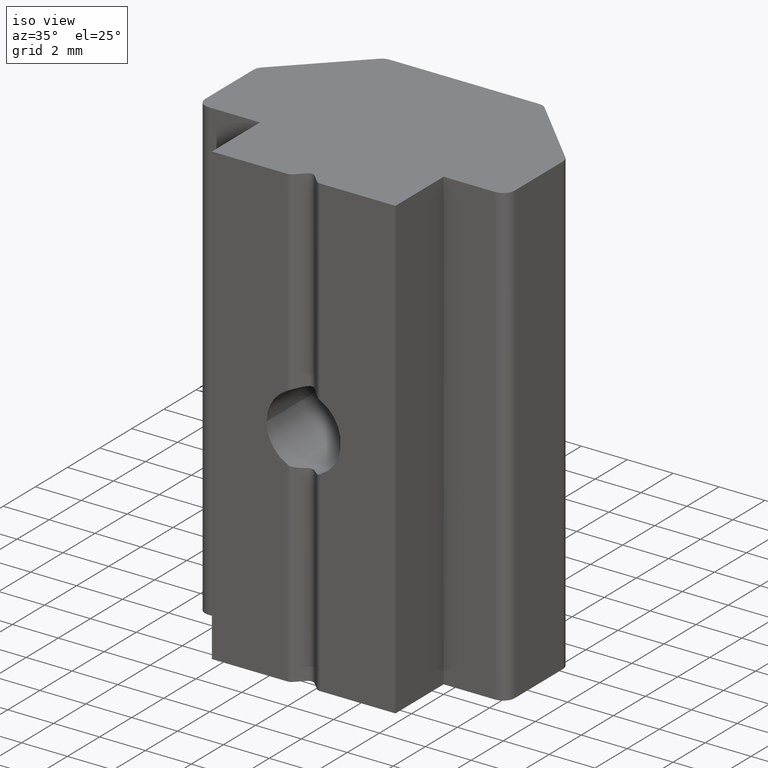
[diagram: clean part render]
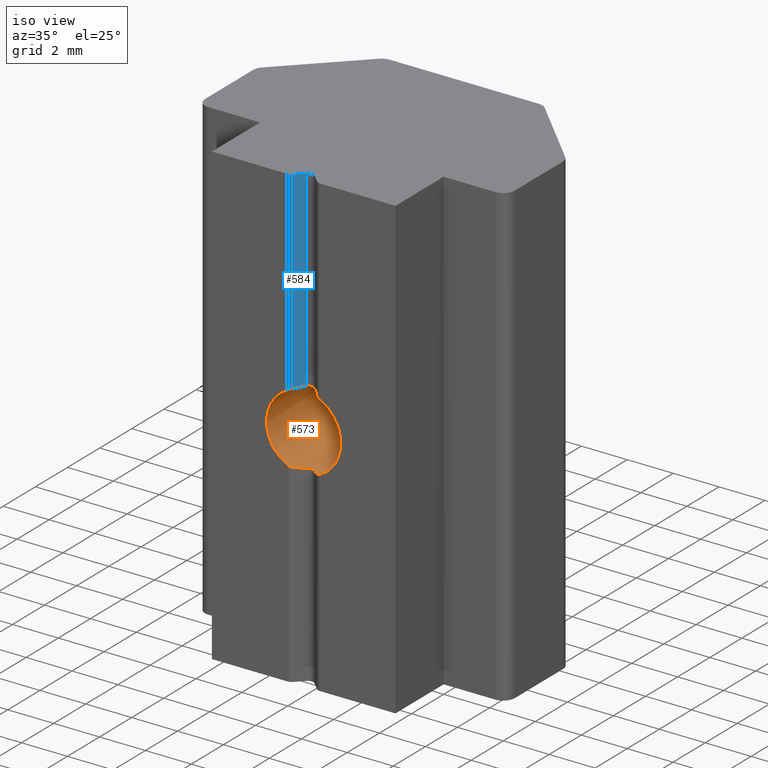
[diagram: same view with the hole feature highlighted: cylindrical wall and planar end face, labeled with their STEP entity ids]
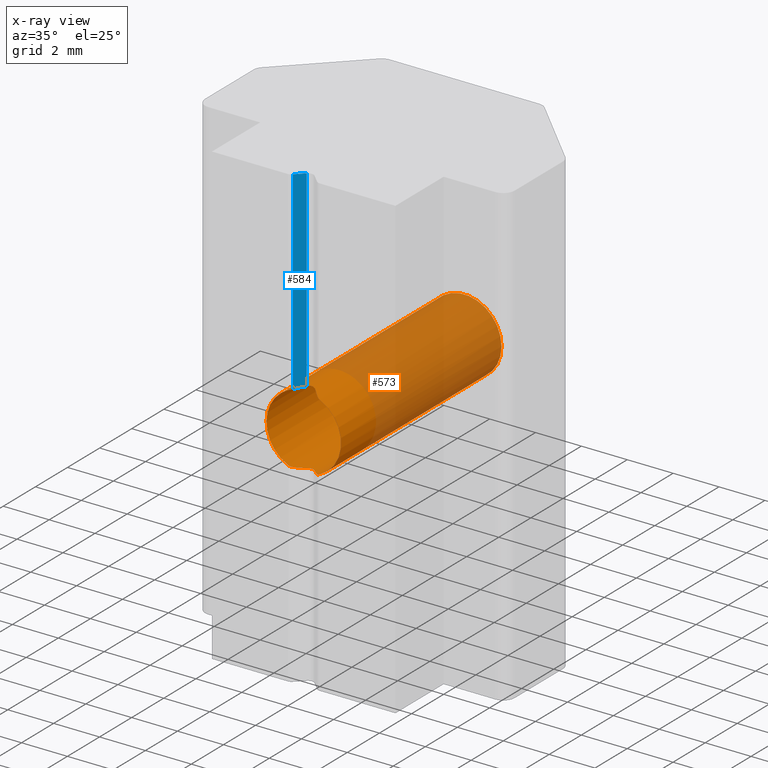
[diagram: x-ray of the same camera — body ghosted, the hole faces saturated]
A machine part, iso view. The highlighted faces form one hole feature of diameter 3.242 mm: the cylindrical wall (entity #573, orange) and its adjacent planar end face (entity #584, blue) — they share a circular edge in the B-rep.
The next image is the same camera in x-ray (body ghosted, the hole faces saturated) — the bore reads through the body.
Wall:
#33=FACE_OUTER_BOUND('',#63,.T.);
#63=EDGE_LOOP('',(#384,#385,#386,#387,#388,#389,#390,#391,#392,#393,#394,
#395,#396,#397,#398,#399,#400));
#94=ELLIPSE('',#627,2.29244018460679,1.621);
#95=ELLIPSE('',#628,2.29244018460679,1.621);
#96=ELLIPSE('',#630,2.29244018460679,1.621);
#97=ELLIPSE('',#631,2.29244018460679,1.621);
#98=B_SPLINE_CURVE_WITH_KNOTS('',3,(#862,#863,#864,#865,#866,#867),
 .UNSPECIFIED.,.F.,.F.,(4,2,4),(0.0190425131023495,0.0289352935333487,0.039160634581061),
 .UNSPECIFIED.);
#99=B_SPLINE_CURVE_WITH_KNOTS('',3,(#871,#872,#873,#874,#875,#876,#877,
#878,#879,#880),.UNSPECIFIED.,.F.,.F.,(4,2,2,2,4),(0.0188669036453617,0.02830017142838,
0.0377334392113984,0.0471667069944167,0.0565999747774351),.UNSPECIFIED.);
#100=B_SPLINE_CURVE_WITH_KNOTS('',3,(#884,#885,#886,#887,#888,#889),
 .UNSPECIFIED.,.F.,.F.,(4,2,4),(0.0407619459190261,0.0509872869667384,0.0608800673977376),
 .UNSPECIFIED.);
#101=B_SPLINE_CURVE_WITH_KNOTS('',3,(#893,#894,#895,#896,#897,#898),
 .UNSPECIFIED.,.F.,.F.,(4,2,4),(0.0989652227320076,0.108858003163007,0.119083344210719),
 .UNSPECIFIED.);
#102=B_SPLINE_CURVE_WITH_KNOTS('',3,(#902,#903,#904,#905,#906,#907,#908,
#909,#910,#911),.UNSPECIFIED.,.F.,.F.,(4,2,2,2,4),(0.0943337820681582,0.103767049851177,
0.113200317634195,0.122633585417213,0.132066853200232),.UNSPECIFIED.);
#103=B_SPLINE_CURVE_WITH_KNOTS('',3,(#915,#916,#917,#918,#919,#920),
 .UNSPECIFIED.,.F.,.F.,(4,2,4),(0.120693936617104,0.130919277664816,0.140812058095815),
 .UNSPECIFIED.);
#104=LINE('',#858,#159);
#159=VECTOR('',#688,1.621);
#214=CIRCLE('',#624,1.621);
#215=CIRCLE('',#625,1.621);
#216=CIRCLE('',#626,1.621);
#217=CIRCLE('',#629,1.621);
#218=CIRCLE('',#632,1.621);
#237=VERTEX_POINT('',#853);
#238=VERTEX_POINT('',#854);
#239=VERTEX_POINT('',#857);
#240=VERTEX_POINT('',#859);
#241=VERTEX_POINT('',#861);
#242=VERTEX_POINT('',#868);
#243=VERTEX_POINT('',#870);
#244=VERTEX_POINT('',#881);
#245=VERTEX_POINT('',#883);
#246=VERTEX_POINT('',#890);
#247=VERTEX_POINT('',#892);
#248=VERTEX_POINT('',#899);
#249=VERTEX_POINT('',#901);
#250=VERTEX_POINT('',#912);
#251=VERTEX_POINT('',#914);
#296=EDGE_CURVE('',#237,#238,#214,.T.);
#297=EDGE_CURVE('',#238,#237,#215,.T.);
#298=EDGE_CURVE('',#238,#239,#104,.T.);
#299=EDGE_CURVE('',#240,#239,#216,.T.);
#300=EDGE_CURVE('',#241,#240,#98,.T.);
#301=EDGE_CURVE('',#242,#241,#94,.T.);
#302=EDGE_CURVE('',#243,#242,#99,.T.);
#303=EDGE_CURVE('',#244,#243,#95,.T.);
#304=EDGE_CURVE('',#245,#244,#100,.T.);
#305=EDGE_CURVE('',#246,#245,#217,.T.);
#306=EDGE_CURVE('',#247,#246,#101,.T.);
#307=EDGE_CURVE('',#248,#247,#96,.T.);
#308=EDGE_CURVE('',#249,#248,#102,.T.);
#309=EDGE_CURVE('',#250,#249,#97,.T.);
#310=EDGE_CURVE('',#251,#250,#103,.T.);
#311=EDGE_CURVE('',#239,#251,#218,.T.);
#384=ORIENTED_EDGE('',*,*,#296,.F.);
#385=ORIENTED_EDGE('',*,*,#297,.F.);
#386=ORIENTED_EDGE('',*,*,#298,.T.);
#387=ORIENTED_EDGE('',*,*,#299,.F.);
#388=ORIENTED_EDGE('',*,*,#300,.F.);
#389=ORIENTED_EDGE('',*,*,#301,.F.);
#390=ORIENTED_EDGE('',*,*,#302,.F.);
#391=ORIENTED_EDGE('',*,*,#303,.F.);
#392=ORIENTED_EDGE('',*,*,#304,.F.);
#393=ORIENTED_EDGE('',*,*,#305,.F.);
#394=ORIENTED_EDGE('',*,*,#306,.F.);
#395=ORIENTED_EDGE('',*,*,#307,.F.);
#396=ORIENTED_EDGE('',*,*,#308,.F.);
#397=ORIENTED_EDGE('',*,*,#309,.F.);
#398=ORIENTED_EDGE('',*,*,#310,.F.);
#399=ORIENTED_EDGE('',*,*,#311,.F.);
#400=ORIENTED_EDGE('',*,*,#298,.F.);
#560=CYLINDRICAL_SURFACE('',#623,1.621);
#573=ADVANCED_FACE('',(#33),#560,.F.);
#623=AXIS2_PLACEMENT_3D('',#852,#682,#683);
#624=AXIS2_PLACEMENT_3D('',#855,#684,#685);
#625=AXIS2_PLACEMENT_3D('',#856,#686,#687);
#626=AXIS2_PLACEMENT_3D('',#860,#689,#690);
#627=AXIS2_PLACEMENT_3D('',#869,#691,#692);
#628=AXIS2_PLACEMENT_3D('',#882,#693,#694);
#629=AXIS2_PLACEMENT_3D('',#891,#695,#696);
#630=AXIS2_PLACEMENT_3D('',#900,#697,#698);
#631=AXIS2_PLACEMENT_3D('',#913,#699,#700);
#632=AXIS2_PLACEMENT_3D('',#921,#701,#702);
#682=DIRECTION('center_axis',(0.,1.,0.));
#683=DIRECTION('ref_axis',(1.,0.,0.));
#684=DIRECTION('center_axis',(0.,-1.,0.));
#685=DIRECTION('ref_axis',(1.,0.,0.));
#686=DIRECTION('center_axis',(0.,-1.,0.));
#687=DIRECTION('ref_axis',(1.,0.,0.));
#688=DIRECTION('',(0.,-1.,0.));
#689=DIRECTION('center_axis',(0.,1.,0.));
#690=DIRECTION('ref_axis',(1.,0.,0.));
#691=DIRECTION('center_axis',(-0.707106781186548,0.707106781186547,0.));
#692=DIRECTION('ref_axis',(0.707106781186547,0.707106781186548,0.));
#693=DIRECTION('center_axis',(0.70710678118655,0.707106781186546,0.));
#694=DIRECTION('ref_axis',(0.707106781186546,-0.707106781186549,0.));
#695=DIRECTION('center_axis',(0.,1.,0.));
#696=DIRECTION('ref_axis',(1.,0.,0.));
#697=DIRECTION('center_axis',(0.70710678118655,0.707106781186546,0.));
#698=DIRECTION('ref_axis',(0.707106781186546,-0.707106781186549,0.));
#699=DIRECTION('center_axis',(-0.707106781186548,0.707106781186547,0.));
#700=DIRECTION('ref_axis',(0.707106781186547,0.707106781186548,0.));
#701=DIRECTION('center_axis',(0.,1.,0.));
#702=DIRECTION('ref_axis',(1.,0.,0.));
#852=CARTESIAN_POINT('Origin',(0.,2.,0.));
#853=CARTESIAN_POINT('',(1.621,7.,0.));
#854=CARTESIAN_POINT('',(-1.621,7.,1.98515246141786E-16));
#855=CARTESIAN_POINT('Origin',(0.,7.,0.));
#856=CARTESIAN_POINT('Origin',(0.,7.,0.));
#857=CARTESIAN_POINT('',(-1.621,-3.,1.98515246141786E-16));
#858=CARTESIAN_POINT('',(-1.621,2.,1.98515246141786E-16));
#859=CARTESIAN_POINT('',(-0.707106781186547,-3.,-1.45864354795817));
#860=CARTESIAN_POINT('Origin',(0.,-3.,0.));
#861=CARTESIAN_POINT('',(-0.53033008588991,-2.92677669529664,-1.53179339337915));
#862=CARTESIAN_POINT('Ctrl Pts',(-0.53033008588991,-2.92677669529664,-1.53179339337915));
#863=CARTESIAN_POINT('Ctrl Pts',(-0.553066583367898,-2.94951319277463,-1.52392167339886));
#864=CARTESIAN_POINT('Ctrl Pts',(-0.581354058812105,-2.96854348170025,-1.51351881688314));
#865=CARTESIAN_POINT('Ctrl Pts',(-0.642979608756567,-2.99400039761083,-1.48840927695242));
#866=CARTESIAN_POINT('Ctrl Pts',(-0.676436150413531,-3.,-1.47351175275929));
#867=CARTESIAN_POINT('Ctrl Pts',(-0.707106781186547,-3.,-1.45864354795817));
#868=CARTESIAN_POINT('',(-0.176776695296637,-2.57322330470336,-1.61133205764672));
#869=CARTESIAN_POINT('Origin',(0.,-2.39644660940673,0.));
#870=CARTESIAN_POINT('',(0.176776695296638,-2.57322330470336,-1.61133205764672));
#871=CARTESIAN_POINT('Ctrl Pts',(0.176776695296637,-2.57322330470336,-1.61133205764672));
#872=CARTESIAN_POINT('Ctrl Pts',(0.154608872483039,-2.55105548188977,-1.61376405447835));
#873=CARTESIAN_POINT('Ctrl Pts',(0.126530580969824,-2.53182351710259,-1.61634846570126));
#874=CARTESIAN_POINT('Ctrl Pts',(0.064950331056071,-2.50629439802105,-1.61999191508839));
#875=CARTESIAN_POINT('Ctrl Pts',(0.0314442259433945,-2.5,-1.621));
#876=CARTESIAN_POINT('Ctrl Pts',(-0.0314442259433945,-2.5,-1.621));
#877=CARTESIAN_POINT('Ctrl Pts',(-0.0649503310560711,-2.50629439802105,
-1.61999191508839));
#878=CARTESIAN_POINT('Ctrl Pts',(-0.126530580969824,-2.53182351710259,-1.61634846570126));
#879=CARTESIAN_POINT('Ctrl Pts',(-0.154608872483039,-2.55105548188977,-1.61376405447835));
#880=CARTESIAN_POINT('Ctrl Pts',(-0.176776695296637,-2.57322330470336,-1.61133205764672));
#881=CARTESIAN_POINT('',(0.530330085889911,-2.92677669529664,-1.53179339337915));
#882=CARTESIAN_POINT('Origin',(0.,-2.39644660940672,0.));
#883=CARTESIAN_POINT('',(0.707106781186547,-3.,-1.45864354795817));
#884=CARTESIAN_POINT('Ctrl Pts',(0.707106781186547,-3.,-1.45864354795817));
#885=CARTESIAN_POINT('Ctrl Pts',(0.676436150413532,-3.,-1.47351175275929));
#886=CARTESIAN_POINT('Ctrl Pts',(0.642979608756567,-2.99400039761083,-1.48840927695242));
#887=CARTESIAN_POINT('Ctrl Pts',(0.581354058812105,-2.96854348170025,-1.51351881688314));
#888=CARTESIAN_POINT('Ctrl Pts',(0.553066583367899,-2.94951319277463,-1.52392167339886));
#889=CARTESIAN_POINT('Ctrl Pts',(0.530330085889911,-2.92677669529664,-1.53179339337915));
#890=CARTESIAN_POINT('',(0.707106781186547,-3.,1.45864354795817));
#891=CARTESIAN_POINT('Origin',(0.,-3.,0.));
#892=CARTESIAN_POINT('',(0.530330085889911,-2.92677669529664,1.53179339337915));
#893=CARTESIAN_POINT('Ctrl Pts',(0.530330085889911,-2.92677669529664,1.53179339337915));
#894=CARTESIAN_POINT('Ctrl Pts',(0.553066583367899,-2.94951319277463,1.52392167339886));
#895=CARTESIAN_POINT('Ctrl Pts',(0.581354058812105,-2.96854348170025,1.51351881688314));
#896=CARTESIAN_POINT('Ctrl Pts',(0.642979608756567,-2.99400039761083,1.48840927695242));
#897=CARTESIAN_POINT('Ctrl Pts',(0.676436150413532,-3.,1.47351175275929));
#898=CARTESIAN_POINT('Ctrl Pts',(0.707106781186547,-3.,1.45864354795817));
#899=CARTESIAN_POINT('',(0.176776695296638,-2.57322330470336,1.61133205764672));
#900=CARTESIAN_POINT('Origin',(0.,-2.39644660940672,0.));
#901=CARTESIAN_POINT('',(-0.176776695296637,-2.57322330470336,1.61133205764672));
#902=CARTESIAN_POINT('Ctrl Pts',(-0.176776695296637,-2.57322330470336,1.61133205764672));
#903=CARTESIAN_POINT('Ctrl Pts',(-0.154608872483039,-2.55105548188977,1.61376405447835));
#904=CARTESIAN_POINT('Ctrl Pts',(-0.126530580969824,-2.53182351710259,1.61634846570126));
#905=CARTESIAN_POINT('Ctrl Pts',(-0.0649503310560713,-2.50629439802105,
1.61999191508839));
#906=CARTESIAN_POINT('Ctrl Pts',(-0.0314442259433946,-2.5,1.621));
#907=CARTESIAN_POINT('Ctrl Pts',(0.0314442259433945,-2.5,1.621));
#908=CARTESIAN_POINT('Ctrl Pts',(0.064950331056071,-2.50629439802105,1.61999191508839));
#909=CARTESIAN_POINT('Ctrl Pts',(0.126530580969824,-2.53182351710259,1.61634846570126));
#910=CARTESIAN_POINT('Ctrl Pts',(0.154608872483039,-2.55105548188977,1.61376405447835));
#911=CARTESIAN_POINT('Ctrl Pts',(0.176776695296637,-2.57322330470336,1.61133205764672));
#912=CARTESIAN_POINT('',(-0.53033008588991,-2.92677669529664,1.53179339337915));
#913=CARTESIAN_POINT('Origin',(0.,-2.39644660940673,0.));
#914=CARTESIAN_POINT('',(-0.707106781186547,-3.,1.45864354795817));
#915=CARTESIAN_POINT('Ctrl Pts',(-0.707106781186547,-3.,1.45864354795817));
#916=CARTESIAN_POINT('Ctrl Pts',(-0.676436150413531,-3.,1.47351175275929));
#917=CARTESIAN_POINT('Ctrl Pts',(-0.642979608756567,-2.99400039761083,1.48840927695242));
#918=CARTESIAN_POINT('Ctrl Pts',(-0.581354058812105,-2.96854348170025,1.51351881688314));
#919=CARTESIAN_POINT('Ctrl Pts',(-0.553066583367899,-2.94951319277463,1.52392167339886));
#920=CARTESIAN_POINT('Ctrl Pts',(-0.53033008588991,-2.92677669529664,1.53179339337915));
#921=CARTESIAN_POINT('Origin',(0.,-3.,0.));
End face:
#20=PLANE('',#649);
#44=FACE_OUTER_BOUND('',#74,.T.);
#74=EDGE_LOOP('',(#443,#444,#445,#446));
#97=ELLIPSE('',#631,2.29244018460679,1.621);
#116=LINE('',#951,#171);
#121=LINE('',#966,#176);
#123=LINE('',#971,#178);
#171=VECTOR('',#730,10.);
#176=VECTOR('',#749,10.);
#178=VECTOR('',#755,10.);
#249=VERTEX_POINT('',#901);
#250=VERTEX_POINT('',#912);
#261=VERTEX_POINT('',#949);
#264=VERTEX_POINT('',#965);
#309=EDGE_CURVE('',#250,#249,#97,.T.);
#326=EDGE_CURVE('',#249,#261,#116,.T.);
#333=EDGE_CURVE('',#250,#264,#121,.T.);
#336=EDGE_CURVE('',#264,#261,#123,.T.);
#443=ORIENTED_EDGE('',*,*,#309,.T.);
#444=ORIENTED_EDGE('',*,*,#326,.T.);
#445=ORIENTED_EDGE('',*,*,#336,.F.);
#446=ORIENTED_EDGE('',*,*,#333,.F.);
#584=ADVANCED_FACE('',(#44),#20,.F.);
#631=AXIS2_PLACEMENT_3D('',#913,#699,#700);
#649=AXIS2_PLACEMENT_3D('',#970,#753,#754);
#699=DIRECTION('center_axis',(-0.707106781186548,0.707106781186547,0.));
#700=DIRECTION('ref_axis',(0.707106781186547,0.707106781186548,0.));
#730=DIRECTION('',(0.,0.,1.));
#749=DIRECTION('',(0.,0.,1.));
#753=DIRECTION('center_axis',(-0.707106781186548,0.707106781186547,0.));
#754=DIRECTION('ref_axis',(-0.707106781186547,-0.707106781186548,0.));
#755=DIRECTION('',(0.707106781186547,0.707106781186548,0.));
#901=CARTESIAN_POINT('',(-0.176776695296637,-2.57322330470336,1.61133205764672));
#912=CARTESIAN_POINT('',(-0.53033008588991,-2.92677669529664,1.53179339337915));
#913=CARTESIAN_POINT('Origin',(0.,-2.39644660940673,0.));
#949=CARTESIAN_POINT('',(-0.176776695296637,-2.57322330470336,10.));
#951=CARTESIAN_POINT('',(-0.176776695296637,-2.57322330470336,0.));
#965=CARTESIAN_POINT('',(-0.53033008588991,-2.92677669529664,10.));
#966=CARTESIAN_POINT('',(-0.53033008588991,-2.92677669529664,0.));
#970=CARTESIAN_POINT('Origin',(-0.176776695296637,-2.57322330470336,0.));
#971=CARTESIAN_POINT('',(0.96724365896336,-1.42920295044337,10.));